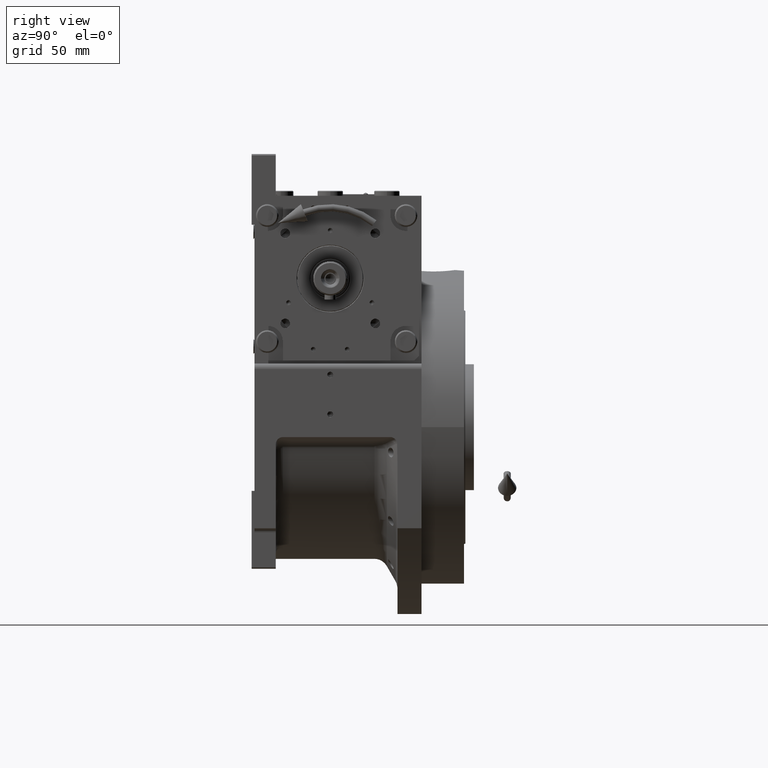
[diagram: clean part render]
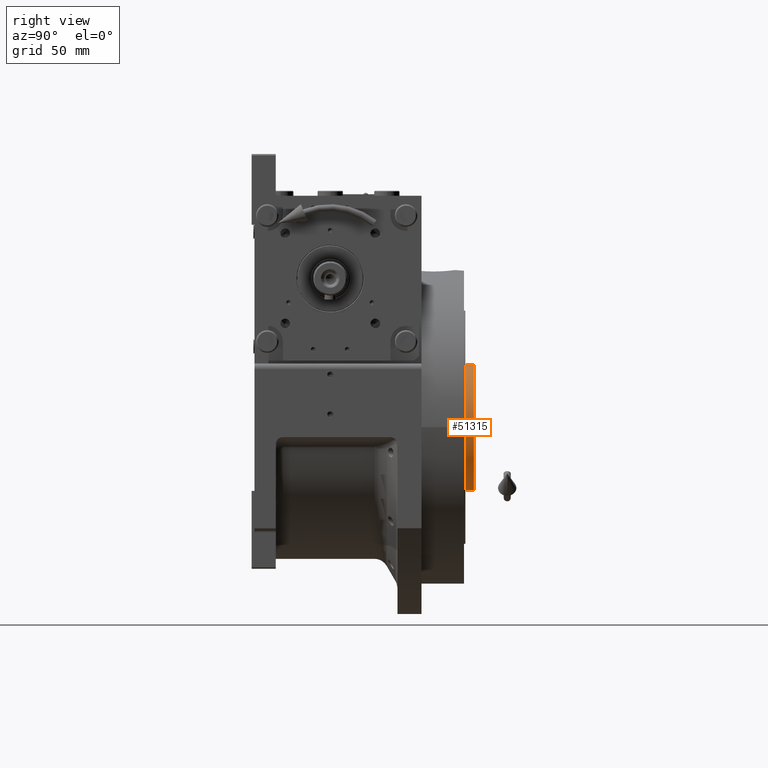
[diagram: same view with one face highlighted and labeled with its STEP entity id]
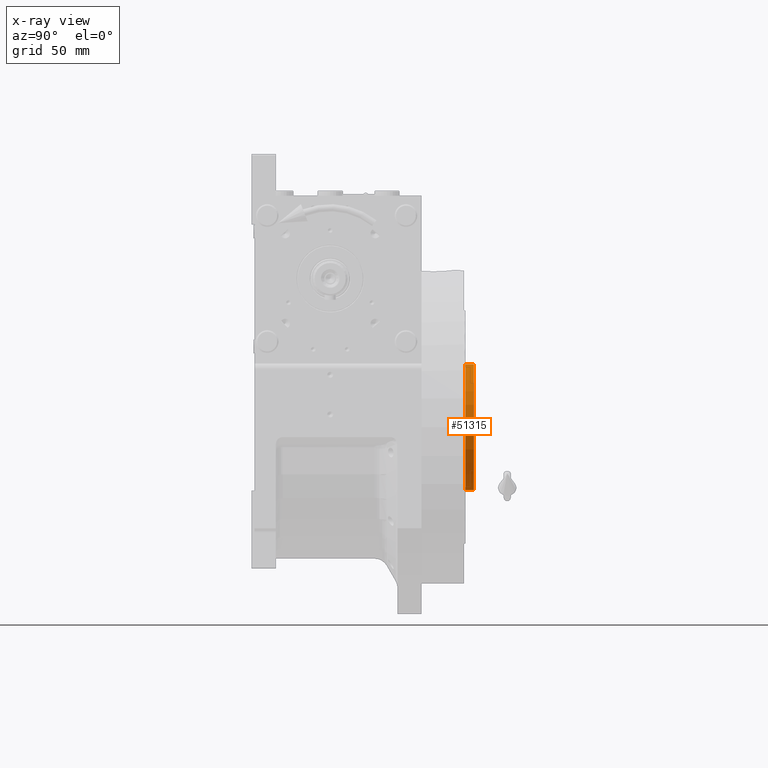
[diagram: x-ray of the same camera — body ghosted, the highlighted face saturated]
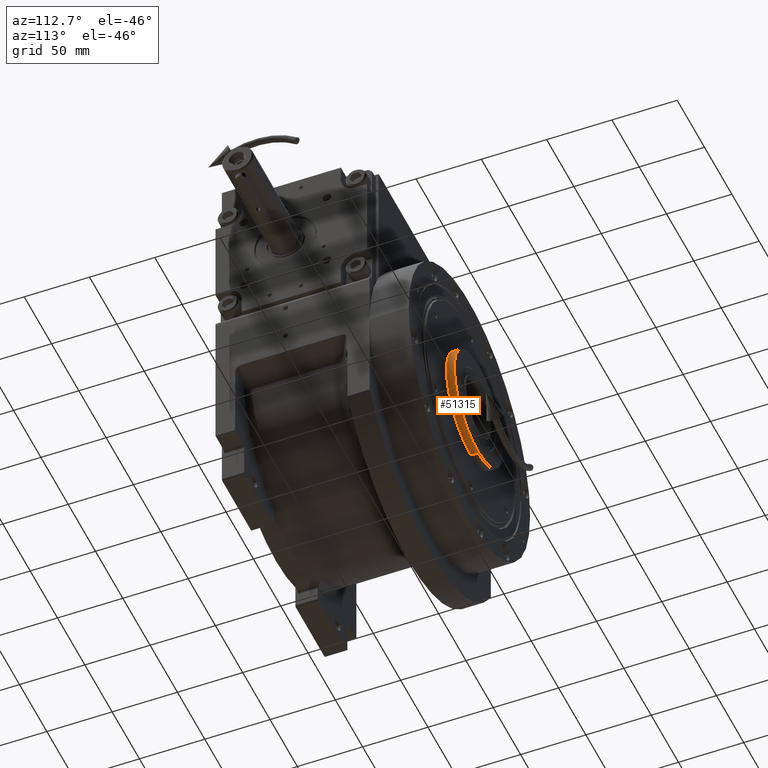
[diagram: same view with one face highlighted and labeled with its STEP entity id]
A machine part, right view. The second image highlights one B-rep face of the part: STEP entity #51315.
The next image is the same camera in x-ray: the body ghosted, the highlighted face saturated — about 0% of this face is hidden behind the body in this view.
A second angle (auxiliary view) of the same face is appended — the face is thin or edge-on in the first view.
In plain terms, the highlighted cylindrical surface (partial cylindrical patch) has radius 44.45 mm, axis along (0, 1, 0).
Its self-contained STEP definition (entity closure, byte-faithful):
#109 = CARTESIAN_POINT ( 'NONE',  ( 44.44999999999973994, 116.5000000000000000, 1.487663700696096830E-13 ) ) ;
#846 = CARTESIAN_POINT ( 'NONE',  ( 44.45000000000000284, 110.5000000000000000, 1.429029998905364916E-13 ) ) ;
#871 = VECTOR ( 'NONE', #52399, 1000.000000000000000 ) ;
#2067 = EDGE_CURVE ( 'NONE', #62174, #51656, #36343, .T. ) ;
#7636 = CARTESIAN_POINT ( 'NONE',  ( -4.012068455237687749E-14, 116.5000000000000000, 1.843108998755953617E-13 ) ) ;
#8125 = ORIENTED_EDGE ( 'NONE', *, *, #2067, .T. ) ;
#9031 = CIRCLE ( 'NONE', #48019, 44.45000000000000284 ) ;
#9201 = DIRECTION ( 'NONE',  ( 2.076516686384254139E-16, -1.000000000000000000, -1.606026332851818412E-15 ) ) ;
#19945 = CARTESIAN_POINT ( 'NONE',  ( -44.45000000000000284, 110.5000000000000000, 2.049194677988252161E-13 ) ) ;
#23657 = ORIENTED_EDGE ( 'NONE', *, *, #42806, .F. ) ;
#24195 = CARTESIAN_POINT ( 'NONE',  ( -2.985112157460509733E-14, 110.5000000000000000, 1.677130656574485646E-13 ) ) ;
#28910 = DIRECTION ( 'NONE',  ( 2.076516686384258083E-16, -1.000000000000000000, -1.606026332851818412E-15 ) ) ;
#30938 = VERTEX_POINT ( 'NONE', #52031 ) ;
#31827 = AXIS2_PLACEMENT_3D ( 'NONE', #24195, #9201, #45463 ) ;
#32202 = ORIENTED_EDGE ( 'NONE', *, *, #46077, .F. ) ;
#36343 = LINE ( 'NONE', #57649, #871 ) ;
#38524 = DIRECTION ( 'NONE',  ( -1.000000000000000000, 6.244223985518314942E-16, 8.404735241107627414E-16 ) ) ;
#38863 = CYLINDRICAL_SURFACE ( 'NONE', #41164, 44.45000000000000284 ) ;
#39628 = CARTESIAN_POINT ( 'NONE',  ( -44.45000000000000284, 110.5000000000000000, 2.012904311173518550E-13 ) ) ;
#40953 = EDGE_CURVE ( 'NONE', #51656, #30938, #9031, .T. ) ;
#41164 = AXIS2_PLACEMENT_3D ( 'NONE', #65079, #50030, #38524 ) ;
#42111 = EDGE_LOOP ( 'NONE', ( #67510, #23657, #32202, #8125 ) ) ;
#42806 = EDGE_CURVE ( 'NONE', #49138, #30938, #66190, .T. ) ;
#45463 = DIRECTION ( 'NONE',  ( 1.000000000000000000, -9.366335978277473892E-16, -5.581567101667585714E-16 ) ) ;
#46077 = EDGE_CURVE ( 'NONE', #62174, #49138, #61931, .T. ) ;
#48019 = AXIS2_PLACEMENT_3D ( 'NONE', #7636, #28910, #50185 ) ;
#49138 = VERTEX_POINT ( 'NONE', #19945 ) ;
#50030 = DIRECTION ( 'NONE',  ( -3.436649836236078549E-16, 1.000000000000000000, 1.582067810090946481E-15 ) ) ;
#50185 = DIRECTION ( 'NONE',  ( 1.000000000000000000, -9.366335978277473892E-16, -8.404735241107627414E-16 ) ) ;
#51315 = ADVANCED_FACE ( 'NONE', ( #54249 ), #38863, .T. ) ;
#51656 = VERTEX_POINT ( 'NONE', #109 ) ;
#52031 = CARTESIAN_POINT ( 'NONE',  ( -44.45000000000026574, 116.5000000000000000, 2.180409113408455842E-13 ) ) ;
#52399 = DIRECTION ( 'NONE',  ( -5.273559366969644437E-16, 1.000000000000000000, 1.582067810090946875E-15 ) ) ;
#54249 = FACE_OUTER_BOUND ( 'NONE', #42111, .T. ) ;
#54900 = VECTOR ( 'NONE', #60951, 1000.000000000000000 ) ;
#57649 = CARTESIAN_POINT ( 'NONE',  ( 44.45000000000000284, 110.5000000000000000, 1.429029998905364916E-13 ) ) ;
#60951 = DIRECTION ( 'NONE',  ( -5.273559366969644437E-16, 1.000000000000000000, 1.582067810090946875E-15 ) ) ;
#61931 = CIRCLE ( 'NONE', #31827, 44.45000000000000284 ) ;
#62174 = VERTEX_POINT ( 'NONE', #846 ) ;
#65079 = CARTESIAN_POINT ( 'NONE',  ( -4.202964374945556730E-14, 122.3250000000000028, 1.935264448693751475E-13 ) ) ;
#66190 = LINE ( 'NONE', #39628, #54900 ) ;
#67510 = ORIENTED_EDGE ( 'NONE', *, *, #40953, .T. ) ;